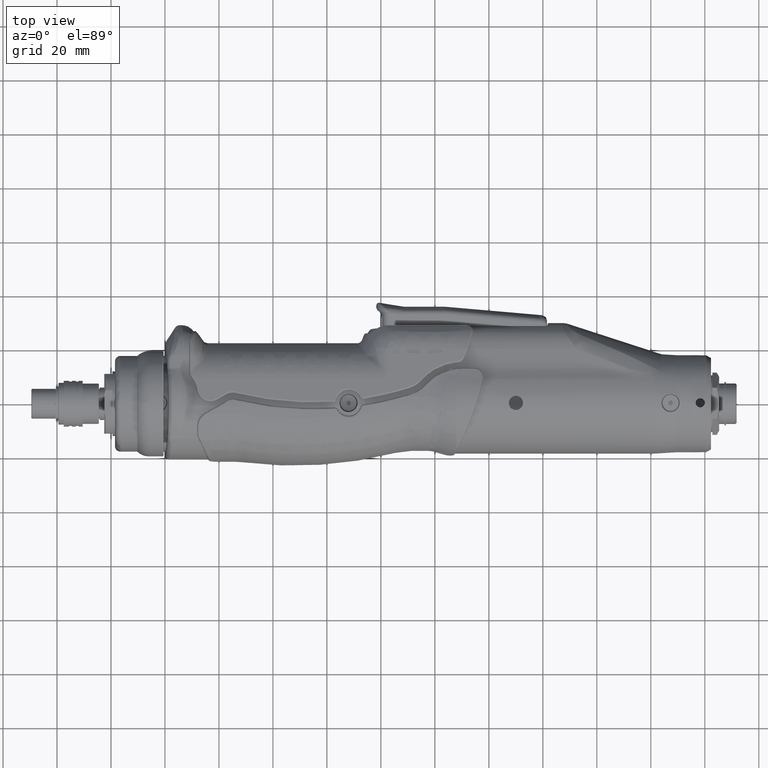
[diagram: clean part render]
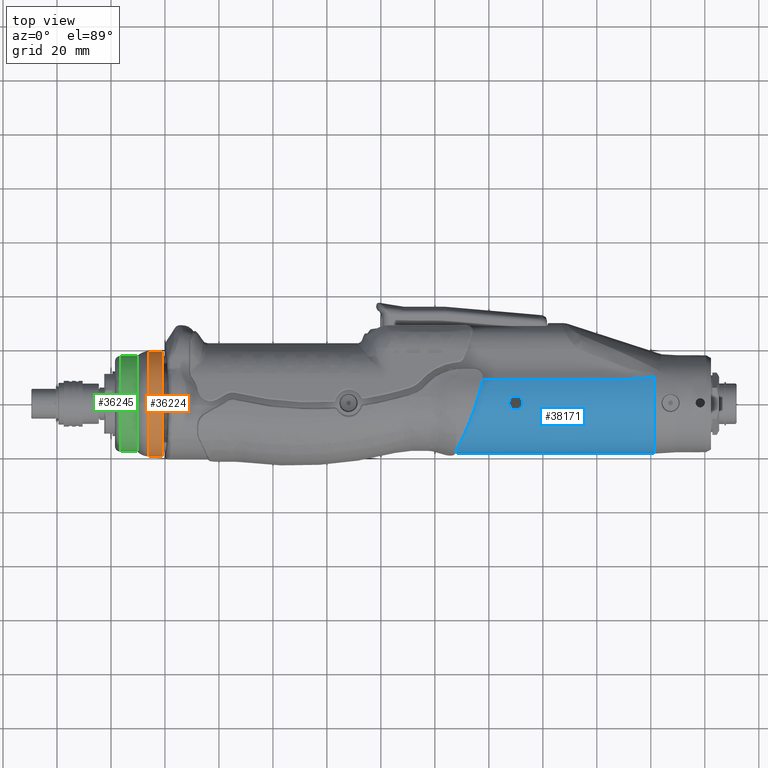
[diagram: same view with three faces highlighted in distinct colors, each labeled with its STEP entity id]
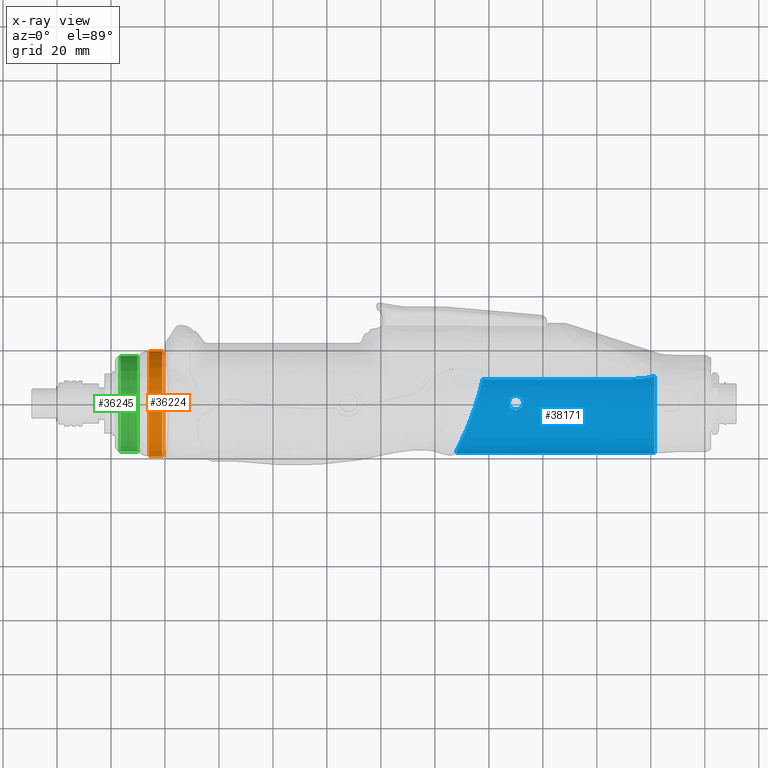
[diagram: x-ray of the same camera — body ghosted, the three highlighted faces saturated]
A machine part, top view with three faces highlighted in distinct colors.
The next image is the same camera in x-ray (body ghosted, the three faces saturated) — at least one of them is partly hidden behind the body in this view.
Their STEP definitions:

[orange] entity #36224 — the highlighted cylindrical surface (bore or boss wall) has radius 19.5 mm, axis along (1, 0, 0).
#1253=LINE('',#55293,#3167);
#3167=VECTOR('',#42629,19.5);
#5521=CYLINDRICAL_SURFACE('',#38686,19.5);
#6480=FACE_OUTER_BOUND('',#8773,.T.);
#8773=EDGE_LOOP('',(#24727,#24728,#24729,#24730,#24731,#24732));
#11142=CIRCLE('',#38684,19.5);
#11143=CIRCLE('',#38685,19.5);
#11144=CIRCLE('',#38687,19.5);
#11145=CIRCLE('',#38688,19.5);
#14592=VERTEX_POINT('',#55286);
#14593=VERTEX_POINT('',#55288);
#14594=VERTEX_POINT('',#55292);
#14595=VERTEX_POINT('',#55294);
#18435=EDGE_CURVE('',#14592,#14593,#11142,.T.);
#18436=EDGE_CURVE('',#14593,#14592,#11143,.T.);
#18437=EDGE_CURVE('',#14593,#14594,#1253,.T.);
#18438=EDGE_CURVE('',#14594,#14595,#11144,.T.);
#18439=EDGE_CURVE('',#14595,#14594,#11145,.T.);
#24727=ORIENTED_EDGE('',*,*,#18436,.F.);
#24728=ORIENTED_EDGE('',*,*,#18437,.T.);
#24729=ORIENTED_EDGE('',*,*,#18438,.T.);
#24730=ORIENTED_EDGE('',*,*,#18439,.T.);
#24731=ORIENTED_EDGE('',*,*,#18437,.F.);
#24732=ORIENTED_EDGE('',*,*,#18435,.F.);
#36224=ADVANCED_FACE('',(#6480),#5521,.T.);
#38684=AXIS2_PLACEMENT_3D('',#55289,#42623,#42624);
#38685=AXIS2_PLACEMENT_3D('',#55290,#42625,#42626);
#38686=AXIS2_PLACEMENT_3D('',#55291,#42627,#42628);
#38687=AXIS2_PLACEMENT_3D('',#55295,#42630,#42631);
#38688=AXIS2_PLACEMENT_3D('',#55296,#42632,#42633);
#42623=DIRECTION('center_axis',(1.,0.,2.46519032881566E-32));
#42624=DIRECTION('ref_axis',(-4.52848116820967E-48,-1.,1.83697019872103E-16));
#42625=DIRECTION('center_axis',(1.,0.,2.46519032881566E-32));
#42626=DIRECTION('ref_axis',(-4.52848116820967E-48,-1.,1.83697019872103E-16));
#42627=DIRECTION('center_axis',(1.,0.,2.46519032881566E-32));
#42628=DIRECTION('ref_axis',(-3.28151105288487E-80,1.,1.33113902587043E-48));
#42629=DIRECTION('',(-1.,0.,-2.46519032881566E-32));
#42630=DIRECTION('center_axis',(1.,0.,2.46519032881566E-32));
#42631=DIRECTION('ref_axis',(2.46519032881566E-32,1.33113902587043E-48,
-1.));
#42632=DIRECTION('center_axis',(1.,0.,2.46519032881566E-32));
#42633=DIRECTION('ref_axis',(2.46519032881566E-32,1.33113902587043E-48,
-1.));
#55286=CARTESIAN_POINT('',(-1.00000000000001,-2.5689840320408E-16,19.5));
#55288=CARTESIAN_POINT('',(-1.00000000000001,-19.5,-2.38806125833734E-15));
#55289=CARTESIAN_POINT('Origin',(-1.00000000000001,2.13116285513326E-15,
1.40436639530946E-30));
#55290=CARTESIAN_POINT('Origin',(-1.00000000000001,2.13116285513326E-15,
1.40436639530946E-30));
#55291=CARTESIAN_POINT('Origin',(-3.25000000000001,2.13116285513326E-15,
1.34889961291111E-30));
#55292=CARTESIAN_POINT('',(-6.00000000000001,-19.5,-2.38806125833734E-15));
#55293=CARTESIAN_POINT('',(-3.25000000000001,-19.5,-2.38806125833734E-15));
#55294=CARTESIAN_POINT('',(-6.00000000000001,-2.5689840320408E-16,19.5));
#55295=CARTESIAN_POINT('Origin',(-6.00000000000001,2.13116285513326E-15,
1.28110687886868E-30));
#55296=CARTESIAN_POINT('Origin',(-6.00000000000001,2.13116285513326E-15,
1.28110687886868E-30));

[blue] entity #38171 — the highlighted cylindrical surface (partial cylindrical patch) has radius 18.5 mm, axis along (1, 0, 0).
#135=FACE_BOUND('',#10829,.T.);
#2771=LINE('',#91319,#4685);
#2880=LINE('',#95133,#4794);
#4685=VECTOR('',#49415,10.);
#4794=VECTOR('',#50054,10.);
#5398=ELLIPSE('',#41319,297.040718051805,18.5);
#6156=CYLINDRICAL_SURFACE('',#41585,18.5);
#8427=FACE_OUTER_BOUND('',#10828,.T.);
#10828=EDGE_LOOP('',(#34713,#34714,#34715,#34716,#34717,#34718,#34719));
#10829=EDGE_LOOP('',(#34720,#34721));
#12043=CIRCLE('',#41342,18.5);
#12155=CIRCLE('',#41584,18.5);
#14028=B_SPLINE_CURVE_WITH_KNOTS('',3,(#89711,#89712,#89713,#89714,#89715,
#89716,#89717,#89718,#89719,#89720,#89721,#89722,#89723,#89724,#89725,#89726,
#89727,#89728,#89729,#89730,#89731,#89732),.UNSPECIFIED.,.F.,.F.,(4,2,2,
2,2,2,2,2,2,2,4),(6.3473237850227,6.43288841858804,6.78289384063463,7.13289926268123,
7.50958409368049,7.88626892467976,8.26295375567902,8.63963858667829,8.99848788548487,
9.35733718429145,9.54325160797308),.UNSPECIFIED.);
#14081=B_SPLINE_CURVE_WITH_KNOTS('',3,(#90673,#90674,#90675,#90676,#90677),
 .UNSPECIFIED.,.F.,.F.,(4,1,4),(-1.71924152466878,-1.13673117278047,-0.699848408864242),
 .UNSPECIFIED.);
#14132=B_SPLINE_CURVE_WITH_KNOTS('',3,(#91962,#91963,#91964,#91965,#91966,
#91967,#91968,#91969,#91970,#91971),.UNSPECIFIED.,.F.,.F.,(4,2,2,2,4),(0.,
0.098431726459093,0.196863452918186,0.295378180244502,0.393892907570817),
 .UNSPECIFIED.);
#14133=B_SPLINE_CURVE_WITH_KNOTS('',3,(#91972,#91973,#91974,#91975,#91976,
#91977,#91978,#91979,#91980,#91981,#91982,#91983,#91984,#91985,#91986,#91987,
#91988,#91989,#91990,#91991,#91992,#91993,#91994,#91995,#91996,#91997),
 .UNSPECIFIED.,.F.,.F.,(4,2,2,2,2,2,2,2,2,2,2,2,4),(0.393892907570817,0.492407634897133,
0.590922362223449,0.689354088682542,0.787785815141635,0.886217541600728,
0.984649268059821,1.08316399538614,1.18167872271245,1.28019345003877,1.37870817736508,
1.47713990382418,1.57557163028327),.UNSPECIFIED.);
#17478=VERTEX_POINT('',#89704);
#17480=VERTEX_POINT('',#89710);
#17550=VERTEX_POINT('',#90648);
#17551=VERTEX_POINT('',#90671);
#17599=VERTEX_POINT('',#91310);
#17600=VERTEX_POINT('',#91312);
#17602=VERTEX_POINT('',#91318);
#17633=VERTEX_POINT('',#91959);
#17634=VERTEX_POINT('',#91961);
#22932=EDGE_CURVE('',#17478,#17480,#14028,.T.);
#23039=EDGE_CURVE('',#17551,#17550,#14081,.T.);
#23117=EDGE_CURVE('',#17600,#17599,#5398,.T.);
#23120=EDGE_CURVE('',#17602,#17600,#2771,.T.);
#23152=EDGE_CURVE('',#17599,#17550,#12043,.T.);
#23175=EDGE_CURVE('',#17634,#17633,#14132,.T.);
#23176=EDGE_CURVE('',#17633,#17634,#14133,.T.);
#23541=EDGE_CURVE('',#17478,#17602,#12155,.T.);
#23542=EDGE_CURVE('',#17480,#17551,#2880,.T.);
#34713=ORIENTED_EDGE('',*,*,#22932,.F.);
#34714=ORIENTED_EDGE('',*,*,#23541,.T.);
#34715=ORIENTED_EDGE('',*,*,#23120,.T.);
#34716=ORIENTED_EDGE('',*,*,#23117,.T.);
#34717=ORIENTED_EDGE('',*,*,#23152,.T.);
#34718=ORIENTED_EDGE('',*,*,#23039,.F.);
#34719=ORIENTED_EDGE('',*,*,#23542,.F.);
#34720=ORIENTED_EDGE('',*,*,#23175,.T.);
#34721=ORIENTED_EDGE('',*,*,#23176,.T.);
#38171=ADVANCED_FACE('',(#8427,#135),#6156,.T.);
#41319=AXIS2_PLACEMENT_3D('',#91313,#49409,#49410);
#41342=AXIS2_PLACEMENT_3D('',#91544,#49471,#49472);
#41584=AXIS2_PLACEMENT_3D('',#95131,#50050,#50051);
#41585=AXIS2_PLACEMENT_3D('',#95132,#50052,#50053);
#49409=DIRECTION('center_axis',(-0.0622810236971402,0.996496379154252,-0.0558215049931637));
#49410=DIRECTION('ref_axis',(-0.99805865262881,-0.0621835344453471,0.00348338293158634));
#49415=DIRECTION('',(1.,0.,0.));
#49471=DIRECTION('center_axis',(-1.,0.,0.));
#49472=DIRECTION('ref_axis',(0.,-1.,0.));
#50050=DIRECTION('center_axis',(1.,0.,0.));
#50051=DIRECTION('ref_axis',(0.,0.,-1.));
#50052=DIRECTION('center_axis',(1.,0.,0.));
#50053=DIRECTION('ref_axis',(0.,-1.,0.));
#50054=DIRECTION('',(1.,0.,0.));
#89704=CARTESIAN_POINT('',(108.,-17.4296372041669,6.20143103897175));
#89710=CARTESIAN_POINT('',(117.709605004166,8.78785591103829,16.2795450945912));
#89711=CARTESIAN_POINT('Ctrl Pts',(108.,-17.4296372041669,6.20143103897175));
#89712=CARTESIAN_POINT('Ctrl Pts',(108.053650356973,-17.3302373515479,6.48080258376668));
#89713=CARTESIAN_POINT('Ctrl Pts',(108.110662515367,-17.2242068700937,6.75752462493134));
#89714=CARTESIAN_POINT('Ctrl Pts',(108.416793910509,-16.652097635709,8.14989766158281));
#89715=CARTESIAN_POINT('Ctrl Pts',(108.716195464902,-16.0838517912481,9.2166930289766));
#89716=CARTESIAN_POINT('Ctrl Pts',(109.379930906669,-14.7849153359103,11.182307339896));
#89717=CARTESIAN_POINT('Ctrl Pts',(109.74401873187,-14.054158768063,12.081165777262));
#89718=CARTESIAN_POINT('Ctrl Pts',(110.513086103481,-12.4555195943865,13.7305382478289));
#89719=CARTESIAN_POINT('Ctrl Pts',(110.948870210501,-11.5200823289128,14.5282486962095));
#89720=CARTESIAN_POINT('Ctrl Pts',(111.853550938421,-9.4818377792231,15.9335199945852));
#89721=CARTESIAN_POINT('Ctrl Pts',(112.322219824736,-8.37903486267191,16.5412337763603));
#89722=CARTESIAN_POINT('Ctrl Pts',(113.249637209678,-6.07159992380536,17.5201689291634));
#89723=CARTESIAN_POINT('Ctrl Pts',(113.708864469952,-4.86540347141321,17.8919714113757));
#89724=CARTESIAN_POINT('Ctrl Pts',(114.581591353868,-2.42838787476376,18.3819945669735));
#89725=CARTESIAN_POINT('Ctrl Pts',(114.995057979117,-1.19751363905229,18.5));
#89726=CARTESIAN_POINT('Ctrl Pts',(115.732252727857,1.14081294047666,18.5));
#89727=CARTESIAN_POINT('Ctrl Pts',(116.083728276386,2.32897540439131,18.3927459724879));
#89728=CARTESIAN_POINT('Ctrl Pts',(116.738681833699,4.70735168028071,17.9320403470145));
#89729=CARTESIAN_POINT('Ctrl Pts',(117.042212397249,5.89755134216135,17.5785904148108));
#89730=CARTESIAN_POINT('Ctrl Pts',(117.45407434781,7.63837307652401,16.8617337090785));
#89731=CARTESIAN_POINT('Ctrl Pts',(117.586251240292,8.2214593785402,16.5852914214808));
#89732=CARTESIAN_POINT('Ctrl Pts',(117.709605004166,8.78785591103829,16.2795450945912));
#90648=CARTESIAN_POINT('',(181.299999999252,9.95077601828486,15.5958987119668));
#90671=CARTESIAN_POINT('',(171.620611076957,8.78785591103832,16.2795450945912));
#90673=CARTESIAN_POINT('Ctrl Pts',(171.620611076957,8.78785591103832,16.2795450945912));
#90674=CARTESIAN_POINT('Ctrl Pts',(173.562312249918,8.78785591103832,16.2795450945912));
#90675=CARTESIAN_POINT('Ctrl Pts',(176.978581015456,8.87121381783501,16.237415140494));
#90676=CARTESIAN_POINT('Ctrl Pts',(180.199591102933,9.50671363525436,15.8792273866039));
#90677=CARTESIAN_POINT('Ctrl Pts',(181.299999999112,9.95077601853056,15.59589871181));
#91310=CARTESIAN_POINT('',(181.3,-18.3842575480751,2.06617385668418));
#91312=CARTESIAN_POINT('',(181.296400589888,-18.384706504471,2.06217524581696));
#91313=CARTESIAN_POINT('Origin',(477.300000000003,0.,0.));
#91318=CARTESIAN_POINT('',(108.,-18.384706504471,2.06217524581705));
#91319=CARTESIAN_POINT('',(144.65,-18.384706504471,2.06217524581696));
#91544=CARTESIAN_POINT('Origin',(181.3,0.,0.));
#91959=CARTESIAN_POINT('',(127.384702885577,-3.20281523999706E-16,18.5));
#91961=CARTESIAN_POINT('',(130.,-2.60563237108214,18.315585711267));
#91962=CARTESIAN_POINT('Ctrl Pts',(130.,-2.60563237108214,18.315585711267));
#91963=CARTESIAN_POINT('Ctrl Pts',(129.671894245136,-2.60563237108214,18.315585711267));
#91964=CARTESIAN_POINT('Ctrl Pts',(129.32207610444,-2.54036865223311,18.3252397251528));
#91965=CARTESIAN_POINT('Ctrl Pts',(128.678595570429,-2.27518271439094,18.3600497658054));
#91966=CARTESIAN_POINT('Ctrl Pts',(128.384898943097,-2.07527673205109,18.3846947665297));
#91967=CARTESIAN_POINT('Ctrl Pts',(127.920469595299,-1.61360370506462,18.4309562688506));
#91968=CARTESIAN_POINT('Ctrl Pts',(127.718715112955,-1.32080420227875,18.4555956080538));
#91969=CARTESIAN_POINT('Ctrl Pts',(127.450816410743,-0.678213249688304,
18.4903639711306));
#91970=CARTESIAN_POINT('Ctrl Pts',(127.384702885577,-0.328382424421053,
18.5));
#91971=CARTESIAN_POINT('Ctrl Pts',(127.384702885577,-1.31838984174237E-15,
18.5));
#91972=CARTESIAN_POINT('Ctrl Pts',(127.384702885577,-7.63278329429795E-16,
18.5));
#91973=CARTESIAN_POINT('Ctrl Pts',(127.384702885577,0.328382424421052,18.5));
#91974=CARTESIAN_POINT('Ctrl Pts',(127.450816410743,0.678213249688298,18.4903639711306));
#91975=CARTESIAN_POINT('Ctrl Pts',(127.718715112955,1.32080420227875,18.4555956080538));
#91976=CARTESIAN_POINT('Ctrl Pts',(127.920469595299,1.61360370506462,18.4309562688506));
#91977=CARTESIAN_POINT('Ctrl Pts',(128.384898943097,2.07527673205109,18.3846947665297));
#91978=CARTESIAN_POINT('Ctrl Pts',(128.678595570429,2.27518271439094,18.3600497658054));
#91979=CARTESIAN_POINT('Ctrl Pts',(129.32207610444,2.54036865223311,18.3252397251528));
#91980=CARTESIAN_POINT('Ctrl Pts',(129.671894245136,2.60563237108214,18.315585711267));
#91981=CARTESIAN_POINT('Ctrl Pts',(130.328105754864,2.60563237108214,18.315585711267));
#91982=CARTESIAN_POINT('Ctrl Pts',(130.67792389556,2.54036865223311,18.3252397251528));
#91983=CARTESIAN_POINT('Ctrl Pts',(131.321404429571,2.27518271439094,18.3600497658054));
#91984=CARTESIAN_POINT('Ctrl Pts',(131.615101056903,2.07527673205109,18.3846947665297));
#91985=CARTESIAN_POINT('Ctrl Pts',(132.079530404701,1.61360370506462,18.4309562688506));
#91986=CARTESIAN_POINT('Ctrl Pts',(132.281284887045,1.32080420227874,18.4555956080538));
#91987=CARTESIAN_POINT('Ctrl Pts',(132.549183589257,0.678213249688291,18.4903639711306));
#91988=CARTESIAN_POINT('Ctrl Pts',(132.615297114423,0.328382424421053,18.5));
#91989=CARTESIAN_POINT('Ctrl Pts',(132.615297114423,-0.328382424421052,
18.5));
#91990=CARTESIAN_POINT('Ctrl Pts',(132.549183589257,-0.67821324968829,18.4903639711306));
#91991=CARTESIAN_POINT('Ctrl Pts',(132.281284887045,-1.32080420227874,18.4555956080538));
#91992=CARTESIAN_POINT('Ctrl Pts',(132.079530404701,-1.61360370506462,18.4309562688506));
#91993=CARTESIAN_POINT('Ctrl Pts',(131.615101056903,-2.07527673205109,18.3846947665297));
#91994=CARTESIAN_POINT('Ctrl Pts',(131.321404429571,-2.27518271439094,18.3600497658054));
#91995=CARTESIAN_POINT('Ctrl Pts',(130.67792389556,-2.54036865223311,18.3252397251528));
#91996=CARTESIAN_POINT('Ctrl Pts',(130.328105754864,-2.60563237108214,18.315585711267));
#91997=CARTESIAN_POINT('Ctrl Pts',(130.,-2.60563237108214,18.315585711267));
#95131=CARTESIAN_POINT('Origin',(108.,0.,0.));
#95132=CARTESIAN_POINT('Origin',(144.65,0.,0.));
#95133=CARTESIAN_POINT('',(144.65,8.78785591103828,16.2795450945912));

[green] entity #36245 — the highlighted cylindrical surface (bore or boss wall) has radius 17.75 mm, axis along (1, 0, 0).
#1286=LINE('',#55462,#3200);
#3200=VECTOR('',#42770,17.75);
#5529=CYLINDRICAL_SURFACE('',#38739,17.75);
#6501=FACE_OUTER_BOUND('',#8794,.T.);
#8794=EDGE_LOOP('',(#24847,#24848,#24849,#24850,#24851,#24852));
#11171=CIRCLE('',#38733,17.75);
#11172=CIRCLE('',#38734,17.75);
#11176=CIRCLE('',#38740,17.75);
#11177=CIRCLE('',#38741,17.75);
#14637=VERTEX_POINT('',#55450);
#14638=VERTEX_POINT('',#55451);
#14639=VERTEX_POINT('',#55459);
#14640=VERTEX_POINT('',#55460);
#18502=EDGE_CURVE('',#14637,#14638,#11171,.T.);
#18503=EDGE_CURVE('',#14638,#14637,#11172,.T.);
#18507=EDGE_CURVE('',#14639,#14640,#11176,.T.);
#18508=EDGE_CURVE('',#14639,#14638,#1286,.T.);
#18509=EDGE_CURVE('',#14640,#14639,#11177,.T.);
#24847=ORIENTED_EDGE('',*,*,#18507,.F.);
#24848=ORIENTED_EDGE('',*,*,#18508,.T.);
#24849=ORIENTED_EDGE('',*,*,#18502,.F.);
#24850=ORIENTED_EDGE('',*,*,#18503,.F.);
#24851=ORIENTED_EDGE('',*,*,#18508,.F.);
#24852=ORIENTED_EDGE('',*,*,#18509,.F.);
#36245=ADVANCED_FACE('',(#6501),#5529,.T.);
#38733=AXIS2_PLACEMENT_3D('',#55452,#42754,#42755);
#38734=AXIS2_PLACEMENT_3D('',#55453,#42756,#42757);
#38739=AXIS2_PLACEMENT_3D('',#55458,#42766,#42767);
#38740=AXIS2_PLACEMENT_3D('',#55461,#42768,#42769);
#38741=AXIS2_PLACEMENT_3D('',#55463,#42771,#42772);
#42754=DIRECTION('center_axis',(-1.,0.,-2.46519032881566E-32));
#42755=DIRECTION('ref_axis',(-4.52848116820967E-48,-1.,1.83697019872103E-16));
#42756=DIRECTION('center_axis',(-1.,0.,-2.46519032881566E-32));
#42757=DIRECTION('ref_axis',(-4.52848116820967E-48,-1.,1.83697019872103E-16));
#42766=DIRECTION('center_axis',(1.,0.,2.46519032881566E-32));
#42767=DIRECTION('ref_axis',(-3.28151105288487E-80,1.,1.33113902587043E-48));
#42768=DIRECTION('center_axis',(1.,0.,2.46519032881566E-32));
#42769=DIRECTION('ref_axis',(2.46519032881566E-32,1.33113902587043E-48,
-1.));
#42770=DIRECTION('',(-1.,0.,-2.46519032881566E-32));
#42771=DIRECTION('center_axis',(1.,0.,2.46519032881566E-32));
#42772=DIRECTION('ref_axis',(2.46519032881566E-32,1.33113902587043E-48,
-1.));
#55450=CARTESIAN_POINT('',(-16.5,-4.25852133532935E-17,17.75));
#55451=CARTESIAN_POINT('',(-16.5,-17.75,-2.17374806848655E-15));
#55452=CARTESIAN_POINT('Origin',(-16.5,2.13116285513326E-15,1.02226189434303E-30));
#55453=CARTESIAN_POINT('Origin',(-16.5,2.13116285513326E-15,1.02226189434303E-30));
#55458=CARTESIAN_POINT('Origin',(-14.3676342932622,2.13116285513326E-15,
1.07482876752052E-30));
#55459=CARTESIAN_POINT('',(-10.2352685865244,-17.75,-2.17374806848655E-15));
#55460=CARTESIAN_POINT('',(-10.2352685865244,-4.25852133532935E-17,17.75));
#55461=CARTESIAN_POINT('Origin',(-10.2352685865244,2.13116285513326E-15,
1.17669944727431E-30));
#55462=CARTESIAN_POINT('',(-14.3676342932622,-17.75,-2.17374806848655E-15));
#55463=CARTESIAN_POINT('Origin',(-10.2352685865244,2.13116285513326E-15,
1.17669944727431E-30));